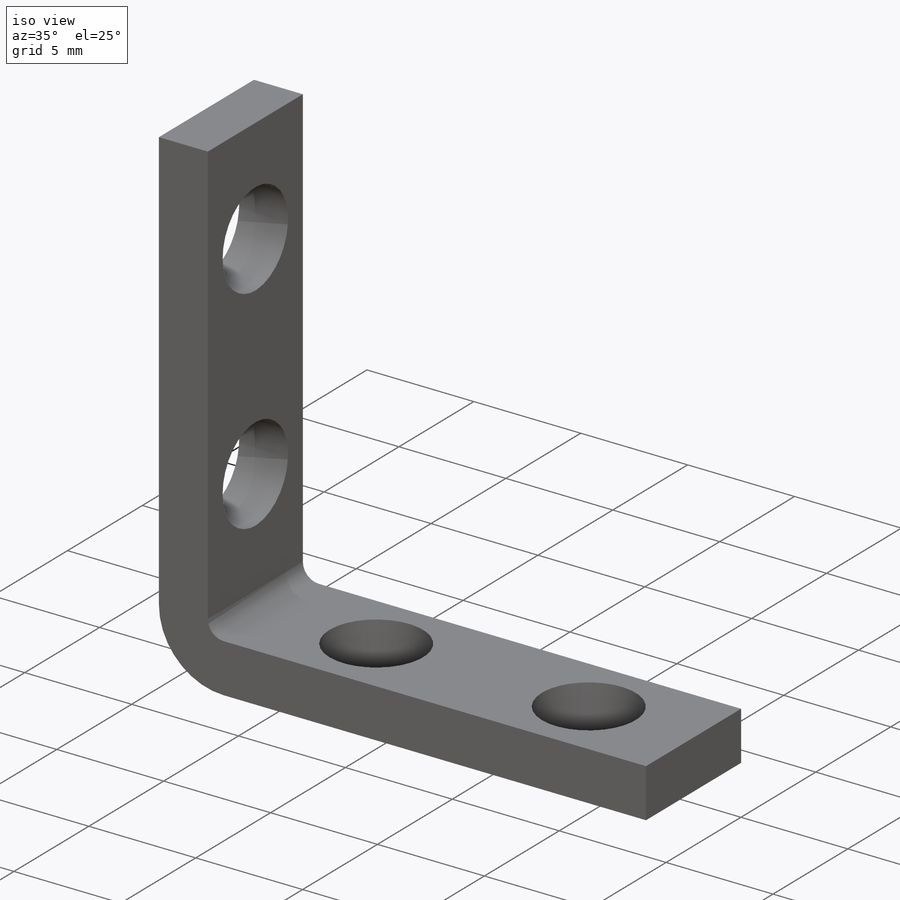
[diagram: iso view]
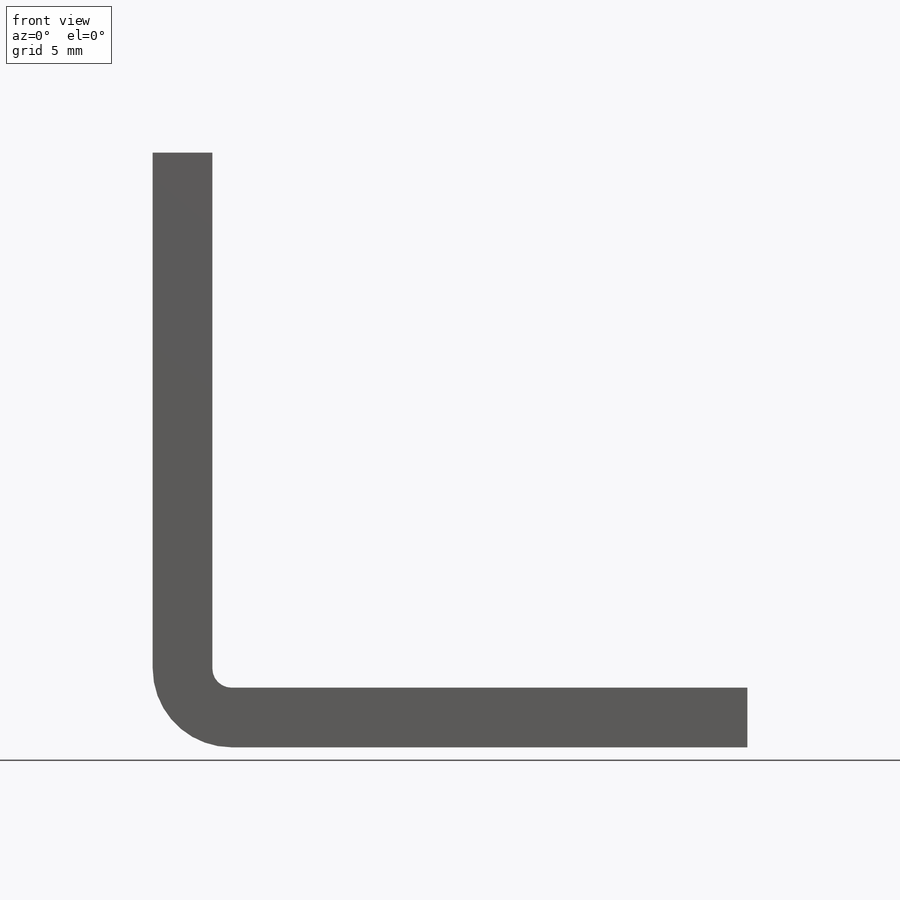
[diagram: front view]
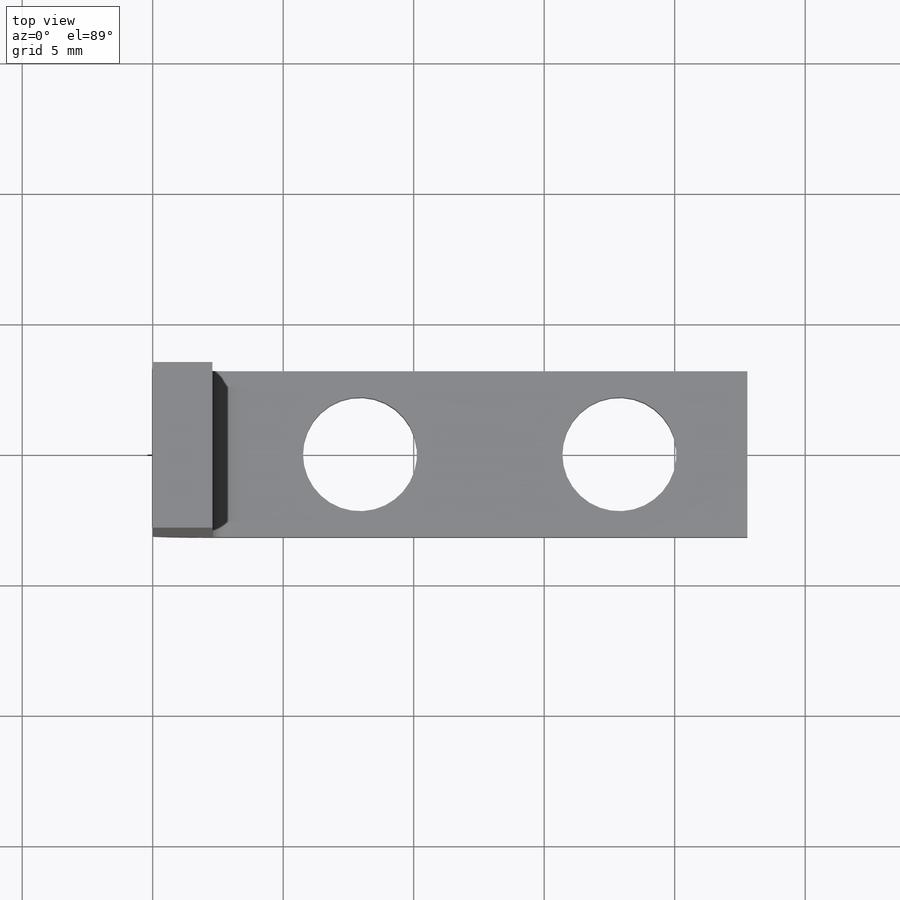
[diagram: top view]
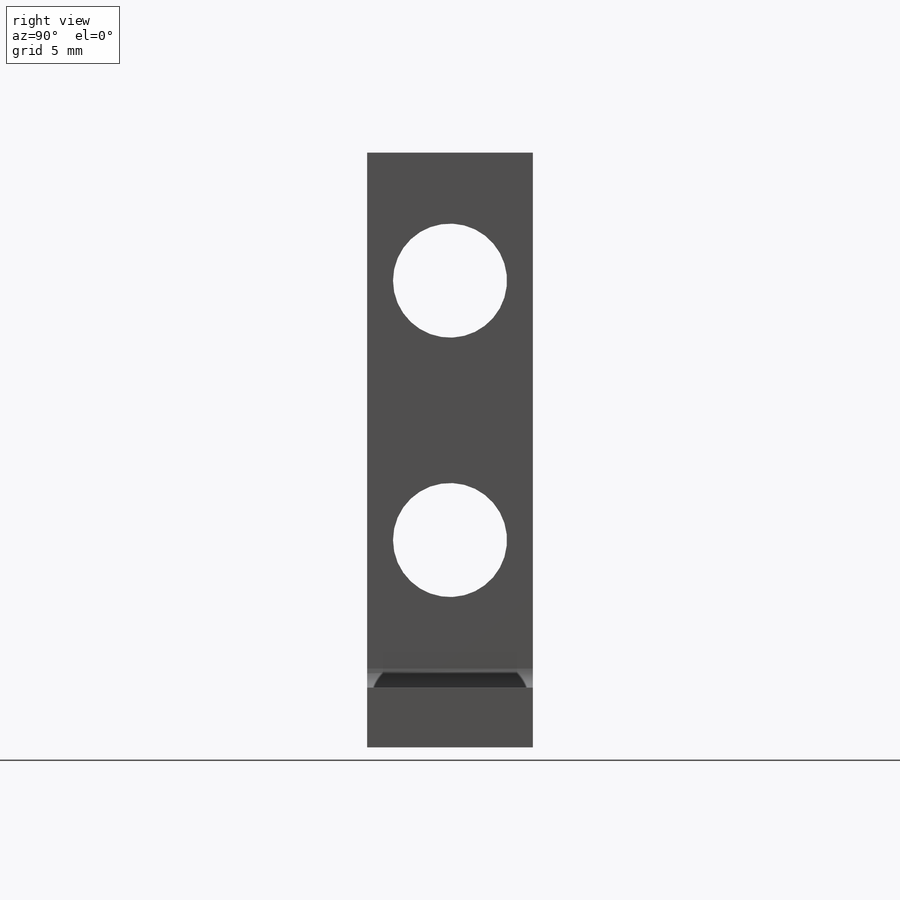
[diagram: right view]
SOLIDWORKS PART (.sldprt)
format: sldprt  version: not decoded by parser v0  size: 282,624 bytes
history: native  units: mm
features: sketch x6, cut_extrude x2, material x1, extrude x1, sheet_metal_op x1 + 1 further entry (+14 scaffold rows collapsed)
feature tree (26):
  scaffold x14  (default folders/planes/origin — collapsed)
  material  "Aluminum"
  sketch  "Sketch1"  dims[D1=22.7838mm D2=2.286mm]
  extrude  "Extrude1"  Depth=6.35mm
  sketch  "Sketch2"  dims[c1.D1=4.3688mm c1.D2=~4.365625mm c1.D4=4.3688mm c2.D2=~9.93902mm c2.D3=4.9022mm c3.D2=~14.84122mm c3.D4=~9.93902mm]
  cut_extrude  "Cut-Extrude1"  [1 undecoded]
  sketch  "Sketch3"  dims[c1.D1=4.3688mm c1.D2=~4.365625mm c1.D4=4.3688mm c2.D2=~9.93902mm c2.D3=4.9022mm c3.D2=~14.84122mm c3.D4=~9.93902mm c3.D1=4.9022mm]
  cut_extrude  "Cut-Extrude2"  [1 undecoded]
  sheet_metal_op  "Sheet-Metal1"  Thickness=2.286mm
  sketch  "Sharp-Sketch1"  dims[D1=0.0mm]
  sketch  "Flat-Sketch1"  dims[D1=0.0mm]
  "Flat-Pattern1"
  sketch  "Bend-Lines1"
decode coverage: 7 of 10 modeling features carry decoded parameters; 1 rows unclassified (native names shown)
note: ~ marks probable driven/reference dimensions
note: 2 parameter values undecoded
note: suppression state not decoded; provenance and decode notes live in map.json
